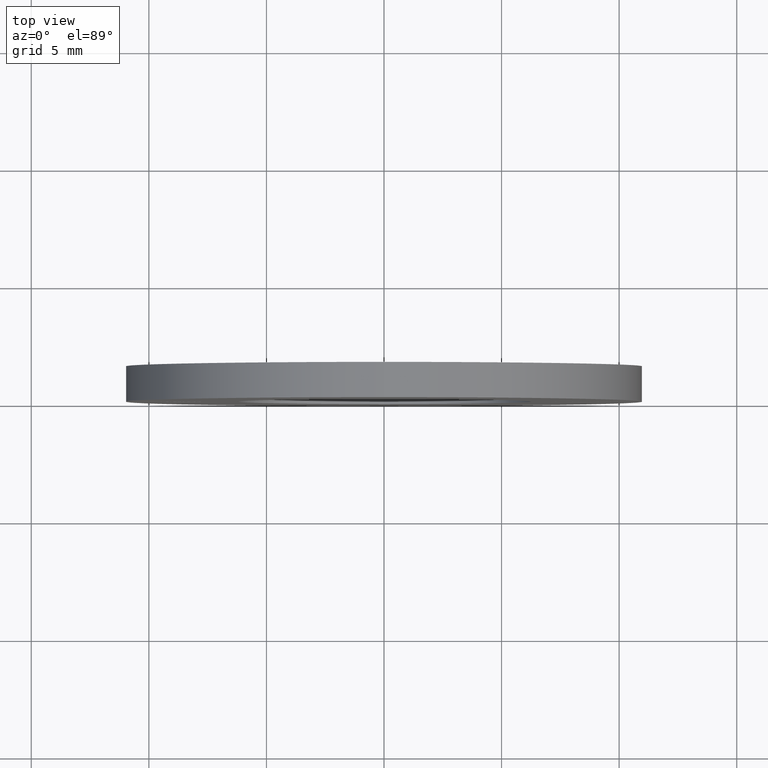
[diagram: clean part render]
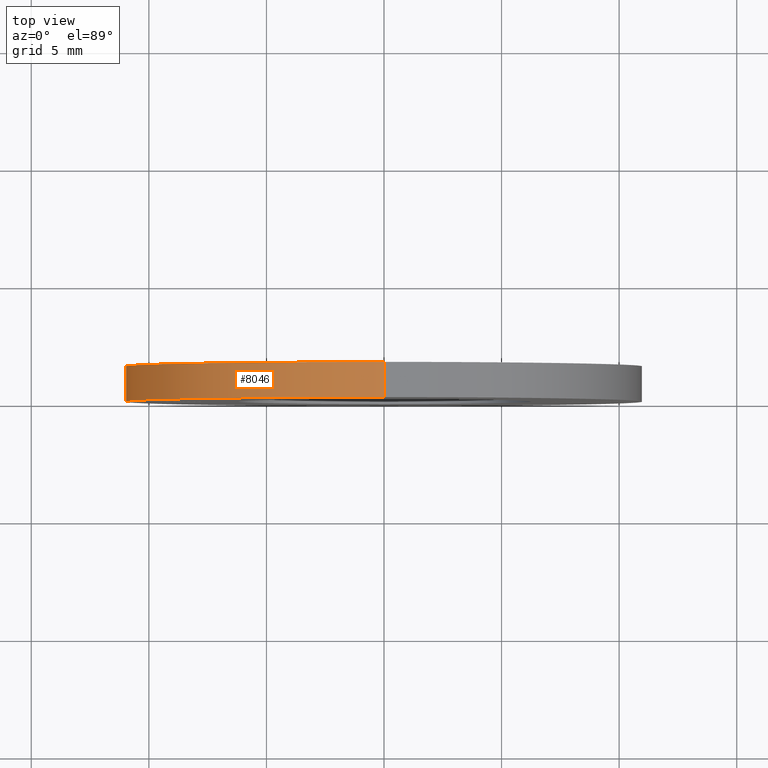
[diagram: same view with one face highlighted and labeled with its STEP entity id]
A machine part, top view. The second image highlights one B-rep face of the part: STEP entity #8046.
In plain terms, the highlighted cylindrical surface (partial cylindrical patch) has radius 11 mm, axis along (-0, -1, -0).
Its self-contained STEP definition (entity closure, byte-faithful):
#239 = EDGE_CURVE ( 'NONE', #7552, #807, #3299, .T. ) ;
#418 = DIRECTION ( 'NONE',  ( -0.0000000000000000000, -1.000000000000000000, -0.0000000000000000000 ) ) ;
#493 = DIRECTION ( 'NONE',  ( 0.0000000000000000000, 1.000000000000000000, 0.0000000000000000000 ) ) ;
#807 = VERTEX_POINT ( 'NONE', #11423 ) ;
#1540 = VECTOR ( 'NONE', #1652, 1000.000000000000000 ) ;
#1629 = VECTOR ( 'NONE', #3184, 1000.000000000000000 ) ;
#1652 = DIRECTION ( 'NONE',  ( -0.0000000000000000000, -1.000000000000000000, -0.0000000000000000000 ) ) ;
#1862 = EDGE_CURVE ( 'NONE', #8209, #7257, #2879, .T. ) ;
#2534 = AXIS2_PLACEMENT_3D ( 'NONE', #11235, #418, #4744 ) ;
#2584 = CARTESIAN_POINT ( 'NONE',  ( 0.0000000000000000000, 0.0000000000000000000, 0.0000000000000000000 ) ) ;
#2879 = CIRCLE ( 'NONE', #13199, 11.00000000000000000 ) ;
#3184 = DIRECTION ( 'NONE',  ( -0.0000000000000000000, -1.000000000000000000, -0.0000000000000000000 ) ) ;
#3299 = CIRCLE ( 'NONE', #13098, 11.00000000000000000 ) ;
#3532 = CARTESIAN_POINT ( 'NONE',  ( 1.347111479062088400E-015, 1.500000000000000000, 11.00000000000000000 ) ) ;
#4260 = ORIENTED_EDGE ( 'NONE', *, *, #13461, .F. ) ;
#4335 = EDGE_CURVE ( 'NONE', #8209, #7552, #9129, .T. ) ;
#4744 = DIRECTION ( 'NONE',  ( 0.0000000000000000000, 0.0000000000000000000, -1.000000000000000000 ) ) ;
#5129 = EDGE_LOOP ( 'NONE', ( #4260, #8226, #5172, #9453 ) ) ;
#5172 = ORIENTED_EDGE ( 'NONE', *, *, #4335, .T. ) ;
#5676 = LINE ( 'NONE', #13874, #1629 ) ;
#6134 = DIRECTION ( 'NONE',  ( 0.0000000000000000000, 0.0000000000000000000, 1.000000000000000000 ) ) ;
#7257 = VERTEX_POINT ( 'NONE', #3532 ) ;
#7552 = VERTEX_POINT ( 'NONE', #11506 ) ;
#8046 = ADVANCED_FACE ( 'NONE', ( #8299 ), #10498, .T. ) ;
#8209 = VERTEX_POINT ( 'NONE', #11539 ) ;
#8226 = ORIENTED_EDGE ( 'NONE', *, *, #1862, .F. ) ;
#8299 = FACE_OUTER_BOUND ( 'NONE', #5129, .T. ) ;
#9129 = LINE ( 'NONE', #11472, #1540 ) ;
#9453 = ORIENTED_EDGE ( 'NONE', *, *, #239, .T. ) ;
#10270 = DIRECTION ( 'NONE',  ( 0.0000000000000000000, 0.0000000000000000000, 1.000000000000000000 ) ) ;
#10498 = CYLINDRICAL_SURFACE ( 'NONE', #2534, 11.00000000000000000 ) ;
#11235 = CARTESIAN_POINT ( 'NONE',  ( 0.0000000000000000000, 1.500000000000000000, 0.0000000000000000000 ) ) ;
#11423 = CARTESIAN_POINT ( 'NONE',  ( 1.347111479062088400E-015, 0.0000000000000000000, 11.00000000000000000 ) ) ;
#11472 = CARTESIAN_POINT ( 'NONE',  ( 0.0000000000000000000, 1.500000000000000000, -11.00000000000000000 ) ) ;
#11506 = CARTESIAN_POINT ( 'NONE',  ( 0.0000000000000000000, 0.0000000000000000000, -11.00000000000000000 ) ) ;
#11514 = CARTESIAN_POINT ( 'NONE',  ( 0.0000000000000000000, 1.500000000000000000, 0.0000000000000000000 ) ) ;
#11539 = CARTESIAN_POINT ( 'NONE',  ( 0.0000000000000000000, 1.500000000000000000, -11.00000000000000000 ) ) ;
#13098 = AXIS2_PLACEMENT_3D ( 'NONE', #2584, #493, #10270 ) ;
#13199 = AXIS2_PLACEMENT_3D ( 'NONE', #11514, #13696, #6134 ) ;
#13461 = EDGE_CURVE ( 'NONE', #7257, #807, #5676, .T. ) ;
#13696 = DIRECTION ( 'NONE',  ( 0.0000000000000000000, 1.000000000000000000, 0.0000000000000000000 ) ) ;
#13874 = CARTESIAN_POINT ( 'NONE',  ( 1.347111479062088400E-015, 1.500000000000000000, 11.00000000000000000 ) ) ;